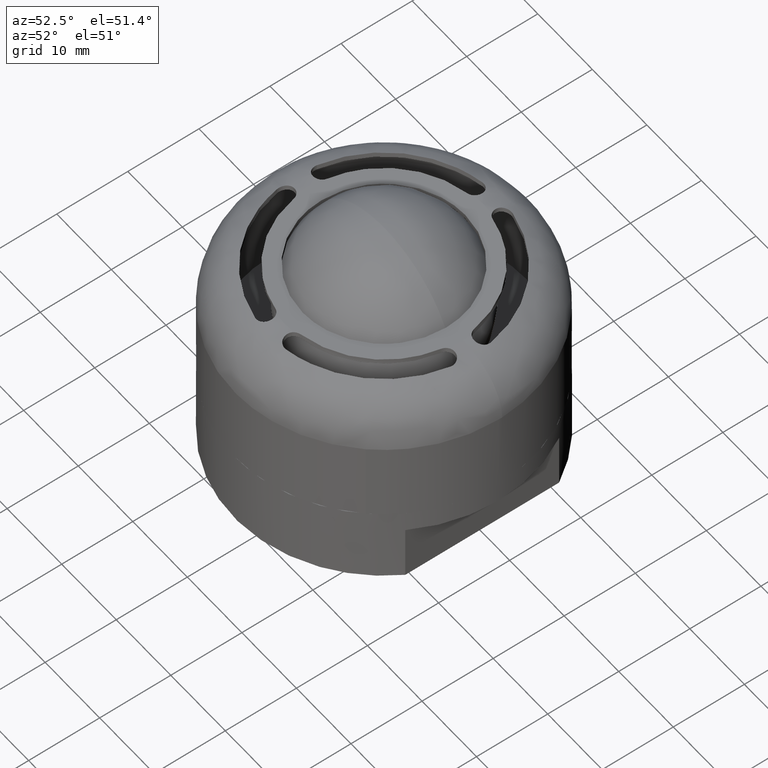
[diagram: clean part render]
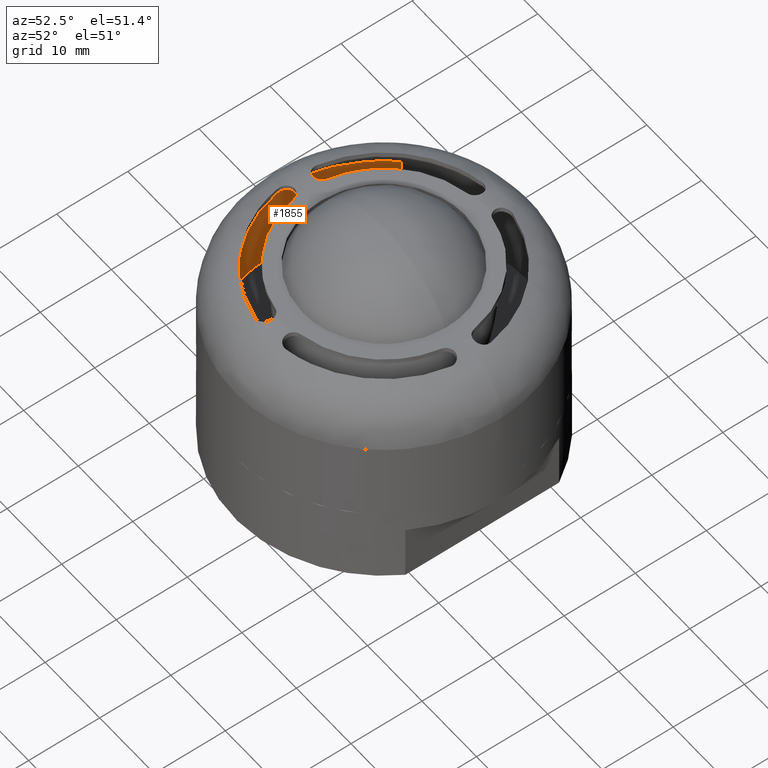
[diagram: same view with one face highlighted and labeled with its STEP entity id]
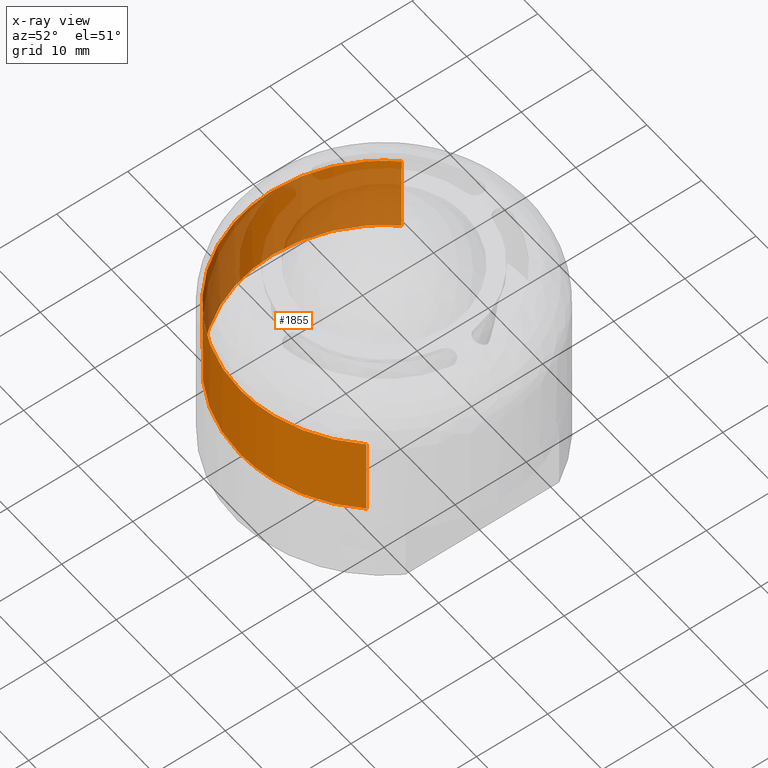
[diagram: x-ray of the same camera — body ghosted, the highlighted face saturated]
A machine part, auxiliary view. The second image highlights one B-rep face of the part: STEP entity #1855.
The next image is the same camera in x-ray: the body ghosted, the highlighted face saturated — about 42% of this face is hidden behind the body in this view.
In plain terms, the highlighted face is a freeform B-spline surface patch.
Its self-contained STEP definition (entity closure, byte-faithful):
#1191=CARTESIAN_POINT('',(-14.831973890610261,13.860106194624111,2.109424E-015));
#1192=VERTEX_POINT('',#1191);
#1206=CARTESIAN_POINT('',(-20.300000000000001,0.0,0.0));
#1207=VERTEX_POINT('',#1206);
#1208=CARTESIAN_POINT('',(-20.300000000000001,0.0,0.0));
#1209=CARTESIAN_POINT('',(-20.300045493994229,0.953515952654676,1.451193E-016));
#1210=CARTESIAN_POINT('',(-20.179407118468049,2.661887034551099,4.051230E-016));
#1211=CARTESIAN_POINT('',(-19.736144630165779,4.886273423077621,7.436611E-016));
#1212=CARTESIAN_POINT('',(-19.149320234002179,6.827444567471305,1.039095E-015));
#1213=CARTESIAN_POINT('',(-18.472774672956511,8.485027993077091,1.291370E-015));
#1214=CARTESIAN_POINT('',(-17.594014222956520,10.179091052196430,1.549196E-015));
#1215=CARTESIAN_POINT('',(-16.462369653332150,11.957946811718450,1.819927E-015));
#1216=CARTESIAN_POINT('',(-15.455903686038070,13.192485938025619,2.007816E-015));
#1217=CARTESIAN_POINT('',(-14.831973890610261,13.860106194624111,2.109424E-015));
#1218=B_SPLINE_CURVE_WITH_KNOTS('',3,(#1208,#1209,#1210,#1211,#1212,#1213,#1214,#1215,#1216,#1217),.UNSPECIFIED.,.F.,.U.,(4,1,1,1,1,1,1,4),(4.604519E-009,2.860546327901698,5.125152620917028,6.793805207674506,8.939207796738810,10.488675823561231,12.514903141655349,15.256258995923710),.UNSPECIFIED.);
#1219=EDGE_CURVE('',#1207,#1192,#1218,.T.);
#1221=CARTESIAN_POINT('',(-0.000000669712831,-20.299999999999990,0.0));
#1222=VERTEX_POINT('',#1221);
#1223=CARTESIAN_POINT('',(-0.000000669712831,-20.299999999999990,0.0));
#1224=CARTESIAN_POINT('',(-0.747354403627662,-20.300012298915430,0.0));
#1225=CARTESIAN_POINT('',(-2.449663368181951,-20.205911684857121,0.0));
#1226=CARTESIAN_POINT('',(-4.865309601760037,-19.763837413495342,0.0));
#1227=CARTESIAN_POINT('',(-7.521301491708551,-18.922430465001330,0.0));
#1228=CARTESIAN_POINT('',(-10.044065084562471,-17.729294586169349,0.0));
#1229=CARTESIAN_POINT('',(-12.323493828140210,-16.196003800252718,0.0));
#1230=CARTESIAN_POINT('',(-14.301608719515750,-14.479080701939180,0.0));
#1231=CARTESIAN_POINT('',(-15.945203269199100,-12.654425956034061,0.0));
#1232=CARTESIAN_POINT('',(-17.552346568285579,-10.327303285982399,0.0));
#1233=CARTESIAN_POINT('',(-18.844545021970060,-7.760196519065463,0.0));
#1234=CARTESIAN_POINT('',(-19.703213656012860,-5.106272633559363,0.0));
#1235=CARTESIAN_POINT('',(-20.190510062533608,-2.532692096935332,0.0));
#1236=CARTESIAN_POINT('',(-20.300038729012730,-0.913435342019284,0.0));
#1237=CARTESIAN_POINT('',(-20.300000000000001,0.0,0.0));
#1238=B_SPLINE_CURVE_WITH_KNOTS('',3,(#1223,#1224,#1225,#1226,#1227,#1228,#1229,#1230,#1231,#1232,#1233,#1234,#1235,#1236,#1237),.UNSPECIFIED.,.F.,.U.,(4,1,1,1,1,1,1,1,1,1,1,1,4),(0.000000011803667,2.242065085658890,5.106931392666393,7.349006510463582,10.587558758144610,13.452420887958541,15.569947366014130,18.434791629262740,20.801417214814521,24.039971364791601,27.029402060279800,29.146909844905529,31.887215078181459),.UNSPECIFIED.);
#1239=EDGE_CURVE('',#1222,#1207,#1238,.T.);
#1241=CARTESIAN_POINT('',(14.831973890610129,-13.860106194623990,7.494005E-016));
#1242=VERTEX_POINT('',#1241);
#1243=CARTESIAN_POINT('',(14.831973890610129,-13.860106194623990,7.494005E-016));
#1244=CARTESIAN_POINT('',(14.181461645915091,-14.556303337174290,7.165328E-016));
#1245=CARTESIAN_POINT('',(12.972940531603429,-15.679458489923570,6.554710E-016));
#1246=CARTESIAN_POINT('',(11.147131625140940,-17.002983469934261,5.632202E-016));
#1247=CARTESIAN_POINT('',(9.465108673081838,-17.991306403126782,4.782342E-016));
#1248=CARTESIAN_POINT('',(7.816245929616059,-18.764396637740941,3.949238E-016));
#1249=CARTESIAN_POINT('',(6.023834049723083,-19.416276810428020,3.043604E-016));
#1250=CARTESIAN_POINT('',(3.464709949869482,-20.086273643641139,1.750580E-016));
#1251=CARTESIAN_POINT('',(1.385927983658676,-20.300189241586459,7.002545E-017));
#1252=CARTESIAN_POINT('',(-0.000000669712831,-20.299999999999990,0.0));
#1253=B_SPLINE_CURVE_WITH_KNOTS('',3,(#1243,#1244,#1245,#1246,#1247,#1248,#1249,#1250,#1251,#1252),.UNSPECIFIED.,.F.,.U.,(4,1,1,1,1,1,1,4),(3.412946E-009,2.858442445567135,4.937315578972957,6.756329242436332,8.705258964500040,10.394344037555650,12.473217958698820,16.630957277128889),.UNSPECIFIED.);
#1254=EDGE_CURVE('',#1242,#1222,#1253,.T.);
#1763=CARTESIAN_POINT('',(14.831974008679611,-13.860106312934700,11.787500000061250));
#1764=CARTESIAN_POINT('',(0.971867695744912,-28.692080321614299,11.787500000061254));
#1765=CARTESIAN_POINT('',(-13.860106312934700,-14.831974008679611,11.787500000061250));
#1766=CARTESIAN_POINT('',(-28.692080321614299,-0.971867695744912,11.787500000061254));
#1767=CARTESIAN_POINT('',(-14.831974008679611,13.860106312934700,11.787500000061250));
#1768=CARTESIAN_POINT('',(14.831974008679611,-13.860106312934700,-0.294687500001531));
#1769=CARTESIAN_POINT('',(0.971867695744912,-28.692080321614299,-0.294687500001531));
#1770=CARTESIAN_POINT('',(-13.860106312934700,-14.831974008679611,-0.294687500001531));
#1771=CARTESIAN_POINT('',(-28.692080321614299,-0.971867695744912,-0.294687500001531));
#1772=CARTESIAN_POINT('',(-14.831974008679611,13.860106312934700,-0.294687500001531));
#1780=(BOUNDED_SURFACE()B_SPLINE_SURFACE(2,1,((#1763,#1768),(#1764,#1769),(#1765,#1770),(#1766,#1771),(#1767,#1772)),.UNSPECIFIED.,.F.,.F.,.U.)B_SPLINE_SURFACE_WITH_KNOTS((3,2,3),(2,2),(0.0,33.634141264695309,67.268282529390618),(0.0,12.082187500062791),.UNSPECIFIED.)GEOMETRIC_REPRESENTATION_ITEM()RATIONAL_B_SPLINE_SURFACE(((1.0,1.0),(0.707106781186548,0.707106781186548),(1.0,1.0),(0.707106781186548,0.707106781186548),(1.0,1.0)))REPRESENTATION_ITEM('')SURFACE());
#1781=CARTESIAN_POINT('',(14.831974010709409,-13.860106310762569,11.500000000007830));
#1782=VERTEX_POINT('',#1781);
#1783=CARTESIAN_POINT('',(0.255070694871437,-20.298397447597129,11.500000000029990));
#1784=VERTEX_POINT('',#1783);
#1785=CARTESIAN_POINT('',(14.831974010709409,-13.860106310762569,11.500000000007830));
#1786=CARTESIAN_POINT('',(14.278773127781420,-14.452133024215639,11.500000000008679));
#1787=CARTESIAN_POINT('',(13.101338470547921,-15.569801217241549,11.500000000010450));
#1788=CARTESIAN_POINT('',(11.147606425236120,-17.023384995866500,11.500000000013570));
#1789=CARTESIAN_POINT('',(9.145439133722494,-18.169467277253020,11.500000000016239));
#1790=CARTESIAN_POINT('',(7.265395124295333,-18.985696348886080,11.500000000019670));
#1791=CARTESIAN_POINT('',(5.279026684996335,-19.640074001610920,11.500000000022171));
#1792=CARTESIAN_POINT('',(2.982591899993062,-20.139724198509519,11.500000000025731));
#1793=CARTESIAN_POINT('',(1.193198882262472,-20.286648579843789,11.500000000028731));
#1794=CARTESIAN_POINT('',(0.255070694871437,-20.298397447597129,11.500000000029990));
#1795=B_SPLINE_CURVE_WITH_KNOTS('',3,(#1785,#1786,#1787,#1788,#1789,#1790,#1791,#1792,#1793,#1794),.UNSPECIFIED.,.F.,.U.,(4,1,1,1,1,1,1,4),(3.786784E-009,2.430790618443316,4.861591084850012,7.292392167620863,9.339362471184900,11.002542463568590,13.561274507766189,16.375877979627891),.UNSPECIFIED.);
#1796=EDGE_CURVE('',#1782,#1784,#1795,.T.);
#1797=ORIENTED_EDGE('',*,*,#1796,.F.);
#1798=CARTESIAN_POINT('',(14.831974010709409,-13.860106310762569,11.500000000007830));
#1799=CARTESIAN_POINT('',(14.831973890610129,-13.860106194623990,7.494005E-016));
#1800=QUASI_UNIFORM_CURVE('',1,(#1798,#1799),.UNSPECIFIED.,.F.,.U.);
#1801=EDGE_CURVE('',#1782,#1242,#1800,.T.);
#1802=ORIENTED_EDGE('',*,*,#1801,.T.);
#1803=ORIENTED_EDGE('',*,*,#1254,.T.);
#1804=ORIENTED_EDGE('',*,*,#1239,.T.);
#1805=ORIENTED_EDGE('',*,*,#1219,.T.);
#1806=CARTESIAN_POINT('',(-14.831974010709409,13.860106310762569,11.500000000007811));
#1807=VERTEX_POINT('',#1806);
#1808=CARTESIAN_POINT('',(-14.831974010709409,13.860106310762569,11.500000000007811));
#1809=CARTESIAN_POINT('',(-14.831973890610261,13.860106194624111,2.109424E-015));
#1810=QUASI_UNIFORM_CURVE('',1,(#1808,#1809),.UNSPECIFIED.,.F.,.U.);
#1811=EDGE_CURVE('',#1807,#1192,#1810,.T.);
#1812=ORIENTED_EDGE('',*,*,#1811,.F.);
#1813=CARTESIAN_POINT('',(-20.300000000000001,0.0,11.500000000000201));
#1814=VERTEX_POINT('',#1813);
#1815=CARTESIAN_POINT('',(-20.300000000000001,0.0,11.500000000000201));
#1816=CARTESIAN_POINT('',(-20.300075088880050,1.112435884524822,11.500000000000179));
#1817=CARTESIAN_POINT('',(-20.113422656475510,3.377022513520445,11.500000000000369));
#1818=CARTESIAN_POINT('',(-19.315834299824530,6.506769256408333,11.500000000001450));
#1819=CARTESIAN_POINT('',(-18.122760234723810,9.288711960374934,11.500000000003160));
#1820=CARTESIAN_POINT('',(-16.661607608109790,11.709116897275340,11.500000000005169));
#1821=CARTESIAN_POINT('',(-15.483036050018640,13.163462840820250,11.500000000006880));
#1822=CARTESIAN_POINT('',(-14.831974010709409,13.860106310762569,11.500000000007811));
#1823=B_SPLINE_CURVE_WITH_KNOTS('',3,(#1815,#1816,#1817,#1818,#1819,#1820,#1821,#1822),.UNSPECIFIED.,.F.,.U.,(4,1,1,1,1,4),(4.604031E-009,3.337305286170279,6.793805236900345,9.654346382188727,12.395712725948940,15.256259061549860),.UNSPECIFIED.);
#1824=EDGE_CURVE('',#1814,#1807,#1823,.T.);
#1825=ORIENTED_EDGE('',*,*,#1824,.F.);
#1826=CARTESIAN_POINT('',(-20.293589042450659,-0.510140937512747,11.500000000059760));
#1827=VERTEX_POINT('',#1826);
#1828=CARTESIAN_POINT('',(-20.293589042450659,-0.510140937512747,11.500000000059760));
#1829=CARTESIAN_POINT('',(-20.297862798511709,-0.340131129818538,11.500000000039920));
#1830=CARTESIAN_POINT('',(-20.300000036214740,-0.170063857531373,11.500000000020050));
#1831=CARTESIAN_POINT('',(-20.300000000000001,0.0,11.500000000000201));
#1832=B_SPLINE_CURVE_WITH_KNOTS('',3,(#1828,#1829,#1830,#1831),.UNSPECIFIED.,.F.,.U.,(4,4),(8.282486E-012,0.510195486172245),.UNSPECIFIED.);
#1833=EDGE_CURVE('',#1827,#1814,#1832,.T.);
#1834=ORIENTED_EDGE('',*,*,#1833,.F.);
#1835=CARTESIAN_POINT('',(0.255070694871437,-20.298397447597129,11.500000000029990));
#1836=CARTESIAN_POINT('',(-0.939278688144075,-20.313516392307019,11.500000000031740));
#1837=CARTESIAN_POINT('',(-2.835815027134352,-20.169491295633090,11.500000000034520));
#1838=CARTESIAN_POINT('',(-5.655924223816458,-19.551616591587219,11.500000000038661));
#1839=CARTESIAN_POINT('',(-7.913689184833858,-18.751774930884739,11.500000000041910));
#1840=CARTESIAN_POINT('',(-10.383264603062370,-17.512039667181462,11.500000000045580));
#1841=CARTESIAN_POINT('',(-12.468867677082510,-16.097069102903031,11.500000000048660));
#1842=CARTESIAN_POINT('',(-14.466759736162000,-14.308957224982141,11.500000000051131));
#1843=CARTESIAN_POINT('',(-16.103473183059471,-12.450673895798600,11.500000000054250));
#1844=CARTESIAN_POINT('',(-17.513027125220720,-10.364673468107879,11.500000000055330));
#1845=CARTESIAN_POINT('',(-18.545748848822470,-8.344189837418378,11.500000000057520));
#1846=CARTESIAN_POINT('',(-19.304242675359841,-6.382994092421343,11.500000000058380));
#1847=CARTESIAN_POINT('',(-20.012528899464922,-3.840259841827710,11.500000000059440));
#1848=CARTESIAN_POINT('',(-20.260655721011439,-1.827744012333730,11.500000000059730));
#1849=CARTESIAN_POINT('',(-20.293589042450659,-0.510140937512747,11.500000000059760));
#1850=B_SPLINE_CURVE_WITH_KNOTS('',3,(#1835,#1836,#1837,#1838,#1839,#1840,#1841,#1842,#1843,#1844,#1845,#1846,#1847,#1848,#1849),.UNSPECIFIED.,.F.,.U.,(4,1,1,1,1,1,1,1,1,1,1,1,4),(0.000000013094091,3.583310883388577,5.683887676004950,8.649403564299576,10.749977004081259,13.962622350074151,16.186719285513561,18.781542863810820,21.376375852784371,23.724072772669981,25.577521494776558,27.678096897009940,31.632097024801801),.UNSPECIFIED.);
#1851=EDGE_CURVE('',#1784,#1827,#1850,.T.);
#1852=ORIENTED_EDGE('',*,*,#1851,.F.);
#1853=EDGE_LOOP('',(#1797,#1802,#1803,#1804,#1805,#1812,#1825,#1834,#1852));
#1854=FACE_OUTER_BOUND('',#1853,.T.);
#1855=ADVANCED_FACE('',(#1854),#1780,.F.);